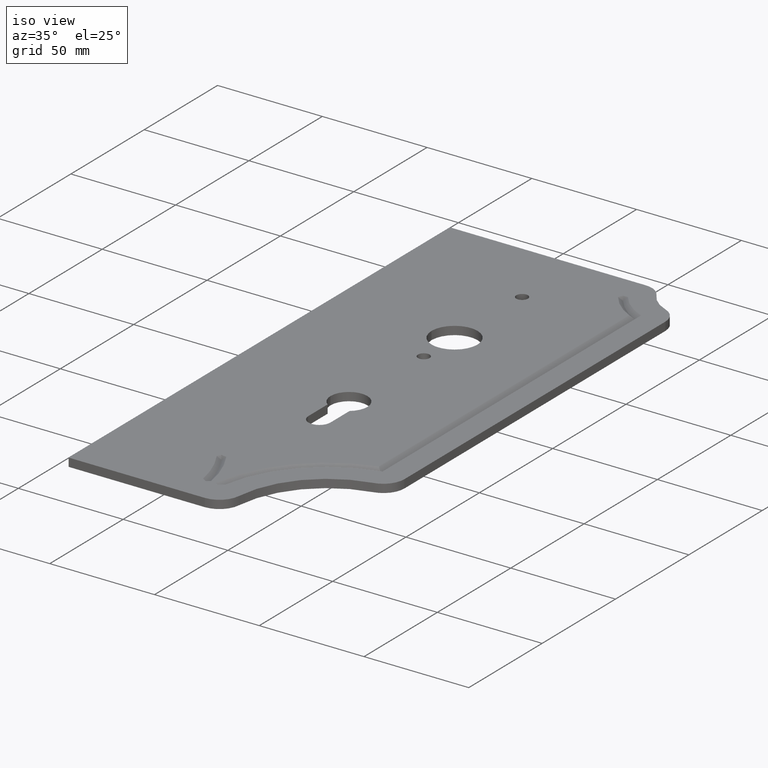
[diagram: clean part render]
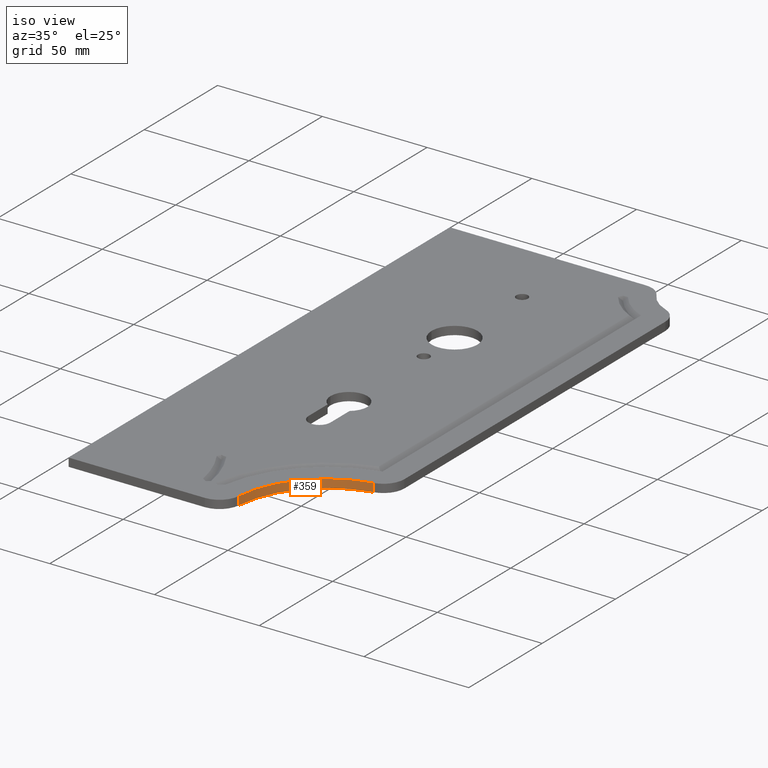
[diagram: same view with one face highlighted and labeled with its STEP entity id]
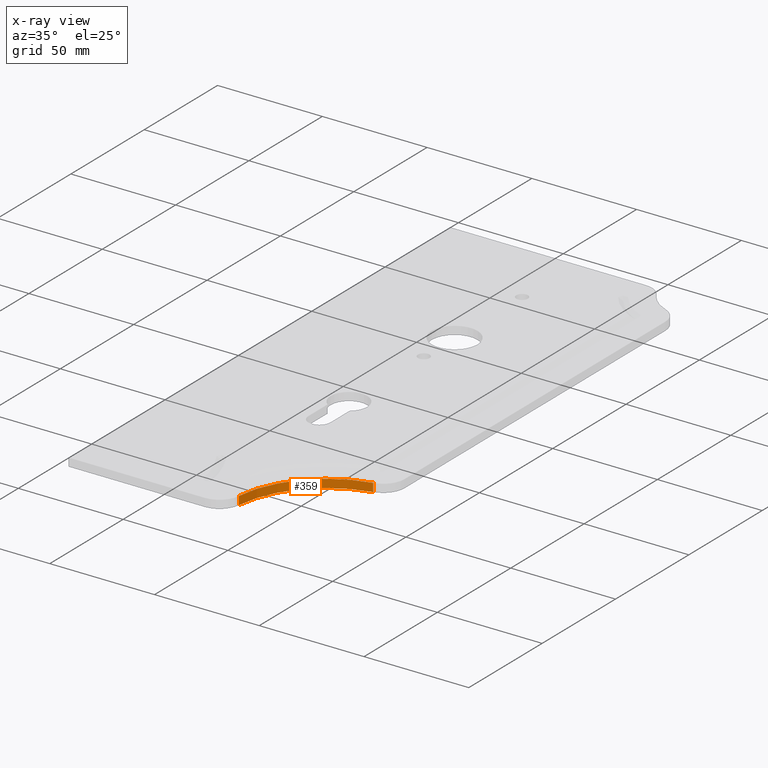
[diagram: x-ray of the same camera — body ghosted, the highlighted face saturated]
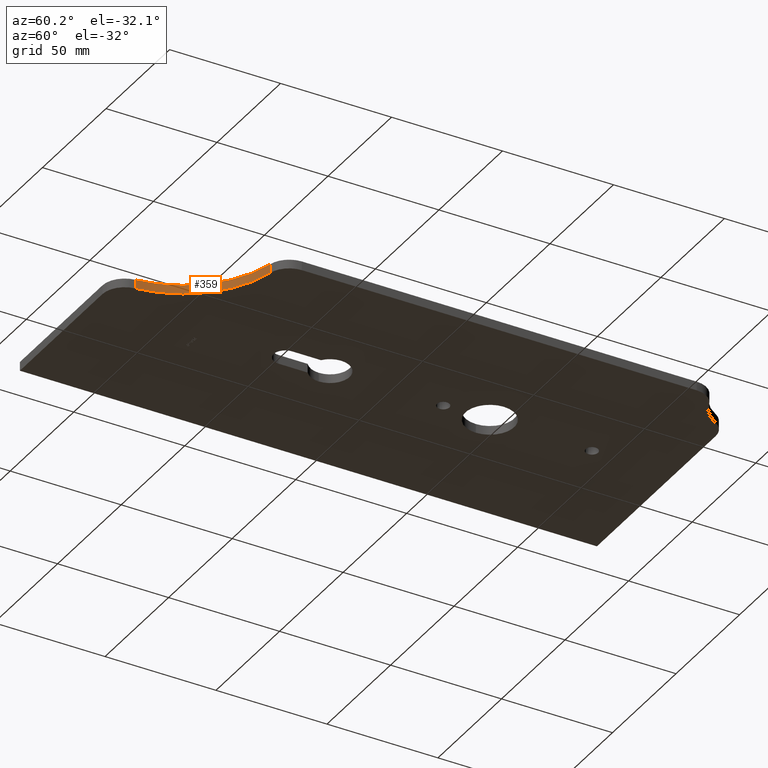
[diagram: same view with one face highlighted and labeled with its STEP entity id]
A machine part, iso view. The second image highlights one B-rep face of the part: STEP entity #359.
The next image is the same camera in x-ray: the body ghosted, the highlighted face saturated — about 0% of this face is hidden behind the body in this view.
A second angle (auxiliary view) of the same face is appended — the face is thin or edge-on in the first view.
In plain terms, the highlighted cylindrical surface (partial cylindrical patch) has radius 45.181 mm, axis along (0, 0, -1).
Its self-contained STEP definition (entity closure, byte-faithful):
#359 = ADVANCED_FACE ( 'NONE', ( #4604 ), #6198, .F. ) ;
#943 = DIRECTION ( 'NONE',  ( -1.000000000000000000, 0.000000000000000000, 0.000000000000000000 ) ) ;
#1112 = AXIS2_PLACEMENT_3D ( 'NONE', #6406, #2279, #7071 ) ;
#1759 = CARTESIAN_POINT ( 'NONE',  ( 134.9401127132668421, -120.9371988820855535, 4.000000000000000000 ) ) ;
#2131 = DIRECTION ( 'NONE',  ( -0.000000000000000000, -0.000000000000000000, 1.000000000000000000 ) ) ;
#2279 = DIRECTION ( 'NONE',  ( 0.000000000000000000, 0.000000000000000000, -1.000000000000000000 ) ) ;
#2805 = ORIENTED_EDGE ( 'NONE', *, *, #6401, .F. ) ;
#2818 = CARTESIAN_POINT ( 'NONE',  ( 170.9793456161054337, -80.88448173440667688, 4.000000000000000000 ) ) ;
#2943 = AXIS2_PLACEMENT_3D ( 'NONE', #3052, #2967, #7159 ) ;
#2967 = DIRECTION ( 'NONE',  ( -0.000000000000000000, -0.000000000000000000, 1.000000000000000000 ) ) ;
#3052 = CARTESIAN_POINT ( 'NONE',  ( 179.9222205310276763, -125.1715540673043421, 0.000000000000000000 ) ) ;
#3099 = EDGE_LOOP ( 'NONE', ( #4122, #7720, #6676, #2805 ) ) ;
#3171 = CARTESIAN_POINT ( 'NONE',  ( 170.9793456161054337, -80.88448173440670530, 0.000000000000000000 ) ) ;
#3405 = CARTESIAN_POINT ( 'NONE',  ( 134.9401127132668421, -120.9371988820855535, 4.000000000000000000 ) ) ;
#3432 = LINE ( 'NONE', #1759, #5503 ) ;
#3881 = CARTESIAN_POINT ( 'NONE',  ( 179.9222205310276763, -125.1715540673043421, 4.000000000000000000 ) ) ;
#4122 = ORIENTED_EDGE ( 'NONE', *, *, #5073, .T. ) ;
#4168 = DIRECTION ( 'NONE',  ( -0.000000000000000000, -0.000000000000000000, 1.000000000000000000 ) ) ;
#4494 = CARTESIAN_POINT ( 'NONE',  ( 134.9401127132668421, -120.9371988820855535, 0.000000000000000000 ) ) ;
#4504 = CIRCLE ( 'NONE', #2943, 45.18096709415647894 ) ;
#4604 = FACE_OUTER_BOUND ( 'NONE', #3099, .T. ) ;
#4684 = VERTEX_POINT ( 'NONE', #4494 ) ;
#4875 = EDGE_CURVE ( 'NONE', #4684, #6074, #3432, .T. ) ;
#5073 = EDGE_CURVE ( 'NONE', #7154, #6074, #5252, .T. ) ;
#5252 = CIRCLE ( 'NONE', #6443, 45.18096709415647894 ) ;
#5503 = VECTOR ( 'NONE', #4168, 1000.000000000000000 ) ;
#5623 = VERTEX_POINT ( 'NONE', #3171 ) ;
#5722 = EDGE_CURVE ( 'NONE', #5623, #4684, #4504, .T. ) ;
#6074 = VERTEX_POINT ( 'NONE', #3405 ) ;
#6198 = CYLINDRICAL_SURFACE ( 'NONE', #1112, 45.18096709415647894 ) ;
#6212 = CARTESIAN_POINT ( 'NONE',  ( 170.9793456161054337, -80.88448173440670530, 4.000000000000000000 ) ) ;
#6371 = LINE ( 'NONE', #2818, #6759 ) ;
#6401 = EDGE_CURVE ( 'NONE', #7154, #5623, #6371, .T. ) ;
#6406 = CARTESIAN_POINT ( 'NONE',  ( 179.9222205310276763, -125.1715540673043421, 4.000000000000000000 ) ) ;
#6443 = AXIS2_PLACEMENT_3D ( 'NONE', #3881, #2131, #943 ) ;
#6676 = ORIENTED_EDGE ( 'NONE', *, *, #5722, .F. ) ;
#6759 = VECTOR ( 'NONE', #7645, 1000.000000000000000 ) ;
#7071 = DIRECTION ( 'NONE',  ( 1.000000000000000000, 0.000000000000000000, 0.000000000000000000 ) ) ;
#7154 = VERTEX_POINT ( 'NONE', #6212 ) ;
#7159 = DIRECTION ( 'NONE',  ( -1.000000000000000000, 0.000000000000000000, 0.000000000000000000 ) ) ;
#7645 = DIRECTION ( 'NONE',  ( 0.000000000000000000, 0.000000000000000000, -1.000000000000000000 ) ) ;
#7720 = ORIENTED_EDGE ( 'NONE', *, *, #4875, .F. ) ;